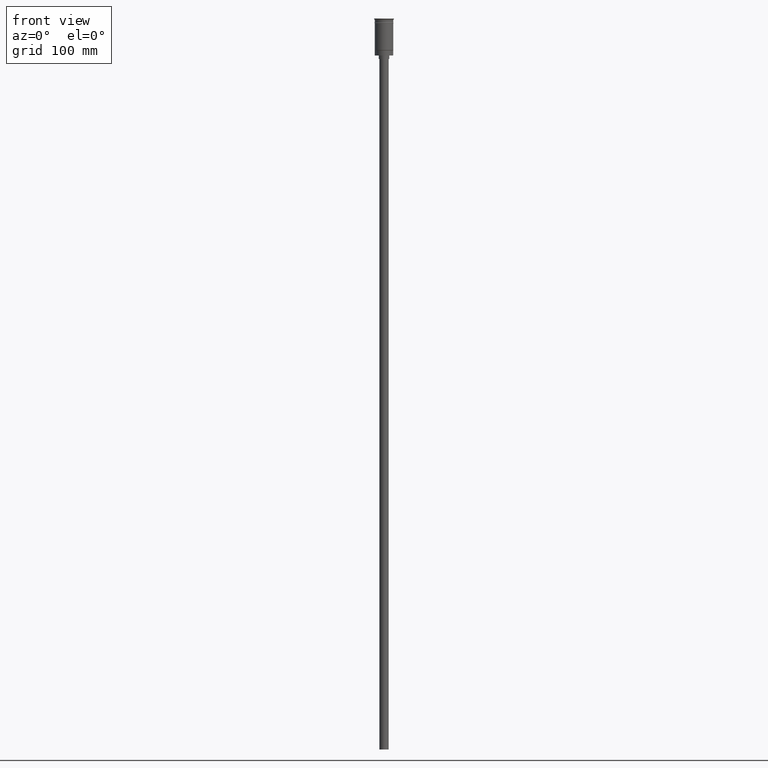
[diagram: clean part render]
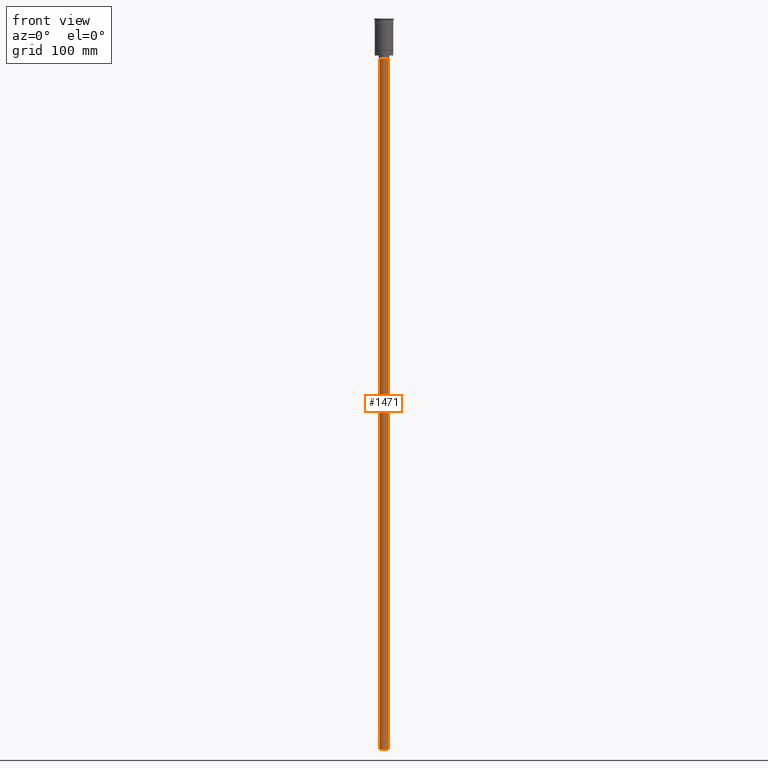
[diagram: same view with one face highlighted and labeled with its STEP entity id]
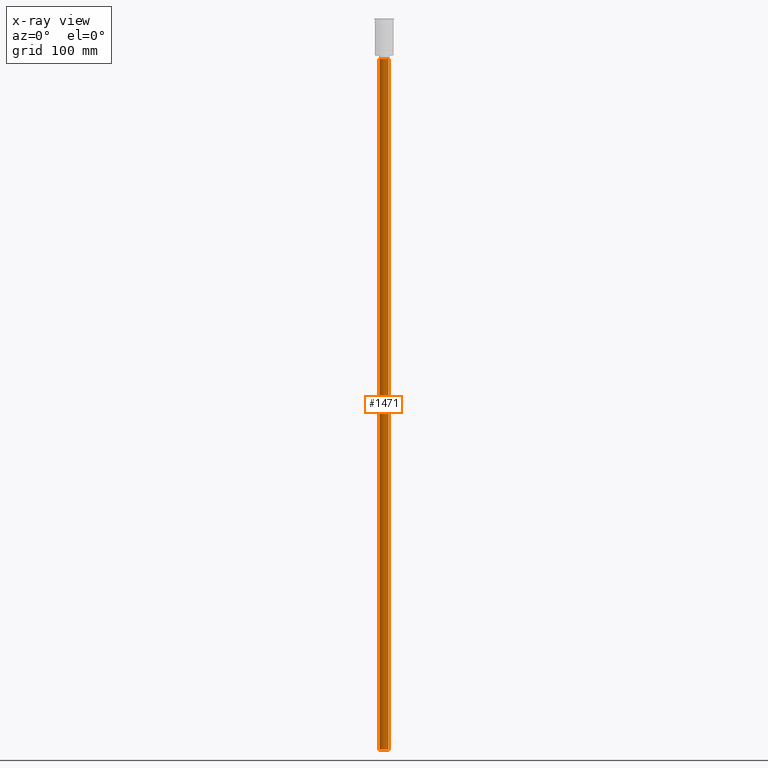
[diagram: x-ray of the same camera — body ghosted, the highlighted face saturated]
A machine part, front view. The second image highlights one B-rep face of the part: STEP entity #1471.
The next image is the same camera in x-ray: the body ghosted, the highlighted face saturated — about 0% of this face is hidden behind the body in this view.
In plain terms, the highlighted cylindrical surface (edge-blend (fillet) strip) has radius 4 mm, axis along (-0, -0, 1).
Its self-contained STEP definition (entity closure, byte-faithful):
#4 = AXIS2_PLACEMENT_3D ( 'NONE', #1124, #1342, #226 ) ;
#39 = CYLINDRICAL_SURFACE ( 'NONE', #985, 4.000000000000000000 ) ;
#45 = CARTESIAN_POINT ( 'NONE',  ( -4.000000000000000000, 4.898587196589412829E-16, -35.00000000000000000 ) ) ;
#58 = LINE ( 'NONE', #1157, #922 ) ;
#94 = VERTEX_POINT ( 'NONE', #1382 ) ;
#148 = EDGE_CURVE ( 'NONE', #983, #971, #1182, .T. ) ;
#226 = DIRECTION ( 'NONE',  ( -1.000000000000000000, 0.000000000000000000, 0.000000000000000000 ) ) ;
#260 = VECTOR ( 'NONE', #656, 1000.000000000000000 ) ;
#294 = EDGE_CURVE ( 'NONE', #900, #983, #58, .T. ) ;
#352 = ORIENTED_EDGE ( 'NONE', *, *, #148, .T. ) ;
#432 = DIRECTION ( 'NONE',  ( -0.000000000000000000, -0.000000000000000000, 1.000000000000000000 ) ) ;
#530 = ORIENTED_EDGE ( 'NONE', *, *, #294, .T. ) ;
#623 = AXIS2_PLACEMENT_3D ( 'NONE', #1527, #784, #1396 ) ;
#656 = DIRECTION ( 'NONE',  ( -0.000000000000000000, -0.000000000000000000, 1.000000000000000000 ) ) ;
#660 = CARTESIAN_POINT ( 'NONE',  ( 0.000000000000000000, 0.000000000000000000, -632.0000000000000000 ) ) ;
#762 = LINE ( 'NONE', #1255, #260 ) ;
#784 = DIRECTION ( 'NONE',  ( 0.000000000000000000, 0.000000000000000000, -1.000000000000000000 ) ) ;
#792 = DIRECTION ( 'NONE',  ( -0.000000000000000000, -0.000000000000000000, 1.000000000000000000 ) ) ;
#900 = VERTEX_POINT ( 'NONE', #911 ) ;
#911 = CARTESIAN_POINT ( 'NONE',  ( 4.000000000000000000, 0.000000000000000000, -632.0000000000000000 ) ) ;
#922 = VECTOR ( 'NONE', #432, 1000.000000000000000 ) ;
#931 = DIRECTION ( 'NONE',  ( 1.000000000000000000, 0.000000000000000000, 0.000000000000000000 ) ) ;
#941 = CARTESIAN_POINT ( 'NONE',  ( 4.000000000000000000, 0.000000000000000000, -35.00000000000000000 ) ) ;
#971 = VERTEX_POINT ( 'NONE', #45 ) ;
#983 = VERTEX_POINT ( 'NONE', #941 ) ;
#985 = AXIS2_PLACEMENT_3D ( 'NONE', #660, #792, #931 ) ;
#1124 = CARTESIAN_POINT ( 'NONE',  ( 0.000000000000000000, 0.000000000000000000, -632.0000000000000000 ) ) ;
#1146 = FACE_OUTER_BOUND ( 'NONE', #1568, .T. ) ;
#1157 = CARTESIAN_POINT ( 'NONE',  ( 4.000000000000000000, 0.000000000000000000, -632.0000000000000000 ) ) ;
#1182 = CIRCLE ( 'NONE', #623, 4.000000000000000000 ) ;
#1202 = ORIENTED_EDGE ( 'NONE', *, *, #1297, .F. ) ;
#1255 = CARTESIAN_POINT ( 'NONE',  ( -4.000000000000000000, 4.898587196589412829E-16, -632.0000000000000000 ) ) ;
#1297 = EDGE_CURVE ( 'NONE', #900, #94, #1455, .T. ) ;
#1342 = DIRECTION ( 'NONE',  ( 0.000000000000000000, 0.000000000000000000, -1.000000000000000000 ) ) ;
#1364 = ORIENTED_EDGE ( 'NONE', *, *, #1434, .F. ) ;
#1382 = CARTESIAN_POINT ( 'NONE',  ( -4.000000000000000000, 4.898587196589412829E-16, -632.0000000000000000 ) ) ;
#1396 = DIRECTION ( 'NONE',  ( -1.000000000000000000, 0.000000000000000000, 0.000000000000000000 ) ) ;
#1434 = EDGE_CURVE ( 'NONE', #94, #971, #762, .T. ) ;
#1455 = CIRCLE ( 'NONE', #4, 4.000000000000000000 ) ;
#1471 = ADVANCED_FACE ( 'NONE', ( #1146 ), #39, .T. ) ;
#1527 = CARTESIAN_POINT ( 'NONE',  ( 0.000000000000000000, 0.000000000000000000, -35.00000000000000000 ) ) ;
#1568 = EDGE_LOOP ( 'NONE', ( #1364, #1202, #530, #352 ) ) ;